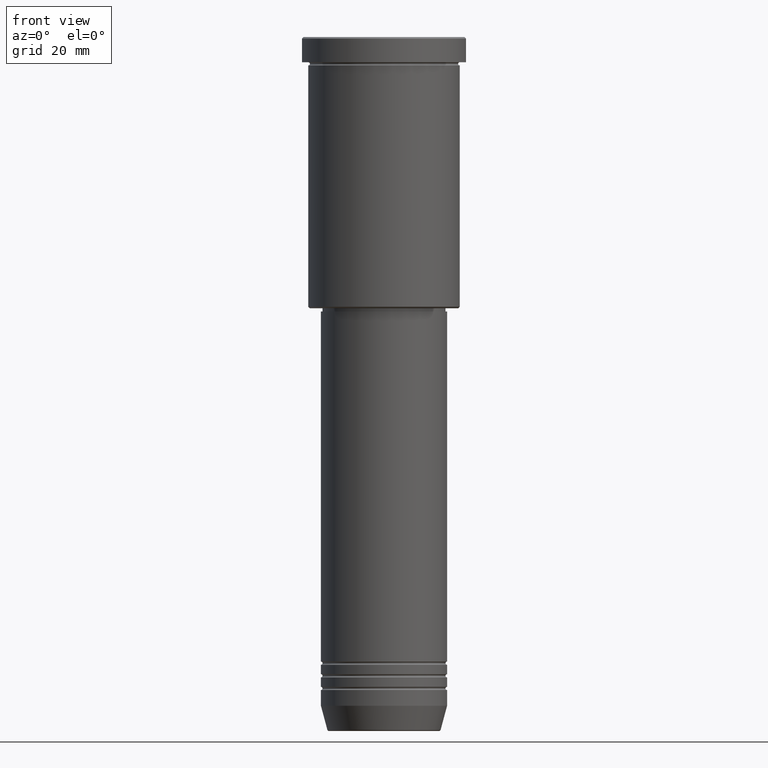
[diagram: clean part render]
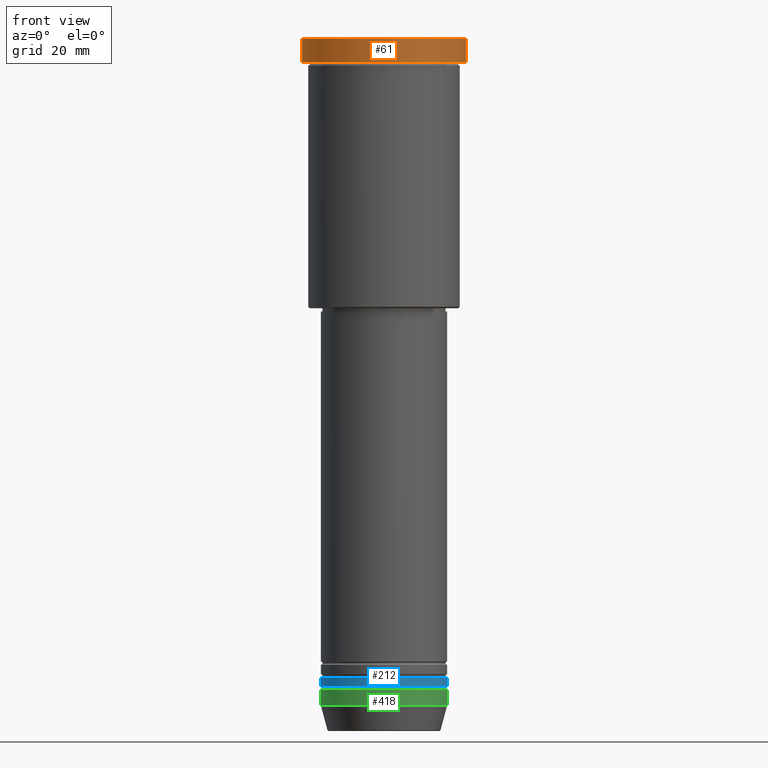
[diagram: same view with three faces highlighted in distinct colors, each labeled with its STEP entity id]
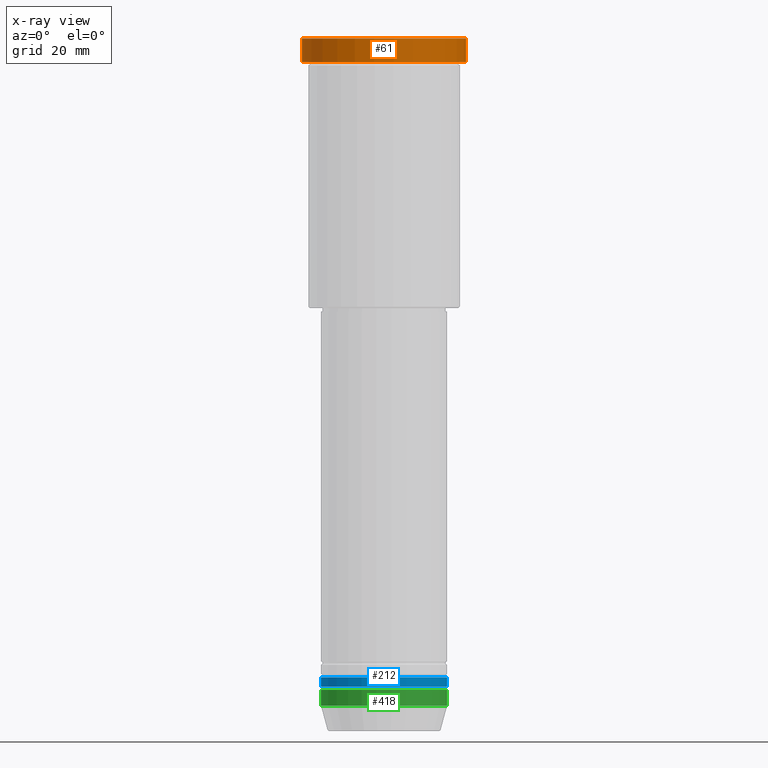
[diagram: x-ray of the same camera — body ghosted, the three highlighted faces saturated]
A machine part, front view with three faces highlighted in distinct colors.
The next image is the same camera in x-ray (body ghosted, the three faces saturated) — at least one of them is partly hidden behind the body in this view.
Their STEP definitions:

[orange] entity #61 — the highlighted cylindrical surface (partial cylindrical patch) has radius 26 mm, axis along (-0, -0, 1).
#61 = ADVANCED_FACE ( 'NONE', ( #330 ), #1178, .T. ) ;
#78 = CARTESIAN_POINT ( 'NONE',  ( 26.00000000000000000, 0.000000000000000000, -0.5000000000000247580 ) ) ;
#126 = EDGE_CURVE ( 'NONE', #1032, #660, #872, .T. ) ;
#160 = ORIENTED_EDGE ( 'NONE', *, *, #126, .T. ) ;
#167 = VECTOR ( 'NONE', #512, 1000.000000000000000 ) ;
#180 = DIRECTION ( 'NONE',  ( -0.000000000000000000, -0.000000000000000000, 1.000000000000000000 ) ) ;
#193 = DIRECTION ( 'NONE',  ( 1.000000000000000000, 0.000000000000000000, 0.000000000000000000 ) ) ;
#196 = AXIS2_PLACEMENT_3D ( 'NONE', #393, #953, #869 ) ;
#204 = VERTEX_POINT ( 'NONE', #614 ) ;
#216 = CARTESIAN_POINT ( 'NONE',  ( -26.00000000000000000, 3.184081677783118191E-15, -7.999999999999992895 ) ) ;
#247 = ORIENTED_EDGE ( 'NONE', *, *, #1174, .T. ) ;
#251 = EDGE_CURVE ( 'NONE', #1032, #204, #870, .T. ) ;
#278 = CARTESIAN_POINT ( 'NONE',  ( 0.000000000000000000, 0.000000000000000000, 0.000000000000000000 ) ) ;
#308 = ORIENTED_EDGE ( 'NONE', *, *, #251, .F. ) ;
#330 = FACE_OUTER_BOUND ( 'NONE', #731, .T. ) ;
#393 = CARTESIAN_POINT ( 'NONE',  ( 0.000000000000000000, 0.000000000000000000, -0.5000000000000247580 ) ) ;
#400 = CIRCLE ( 'NONE', #196, 26.00000000000000000 ) ;
#407 = EDGE_CURVE ( 'NONE', #660, #746, #826, .T. ) ;
#445 = DIRECTION ( 'NONE',  ( -0.000000000000000000, -0.000000000000000000, 1.000000000000000000 ) ) ;
#512 = DIRECTION ( 'NONE',  ( -0.000000000000000000, -0.000000000000000000, 1.000000000000000000 ) ) ;
#573 = CARTESIAN_POINT ( 'NONE',  ( 26.00000000000000000, 0.000000000000000000, -7.999999999999992895 ) ) ;
#608 = CARTESIAN_POINT ( 'NONE',  ( -26.00000000000000000, 3.184081677783118191E-15, 0.000000000000000000 ) ) ;
#614 = CARTESIAN_POINT ( 'NONE',  ( -26.00000000000000000, 3.184081677783118191E-15, -0.5000000000000247580 ) ) ;
#660 = VERTEX_POINT ( 'NONE', #573 ) ;
#688 = AXIS2_PLACEMENT_3D ( 'NONE', #1097, #445, #808 ) ;
#722 = CARTESIAN_POINT ( 'NONE',  ( 26.00000000000000000, 0.000000000000000000, 0.000000000000000000 ) ) ;
#731 = EDGE_LOOP ( 'NONE', ( #308, #160, #1039, #247 ) ) ;
#746 = VERTEX_POINT ( 'NONE', #78 ) ;
#771 = AXIS2_PLACEMENT_3D ( 'NONE', #278, #815, #193 ) ;
#808 = DIRECTION ( 'NONE',  ( 1.000000000000000000, 0.000000000000000000, 0.000000000000000000 ) ) ;
#815 = DIRECTION ( 'NONE',  ( -0.000000000000000000, -0.000000000000000000, 1.000000000000000000 ) ) ;
#826 = LINE ( 'NONE', #722, #993 ) ;
#869 = DIRECTION ( 'NONE',  ( 1.000000000000000000, 0.000000000000000000, 0.000000000000000000 ) ) ;
#870 = LINE ( 'NONE', #608, #167 ) ;
#872 = CIRCLE ( 'NONE', #688, 26.00000000000000000 ) ;
#953 = DIRECTION ( 'NONE',  ( 0.000000000000000000, 0.000000000000000000, -1.000000000000000000 ) ) ;
#993 = VECTOR ( 'NONE', #180, 1000.000000000000000 ) ;
#1032 = VERTEX_POINT ( 'NONE', #216 ) ;
#1039 = ORIENTED_EDGE ( 'NONE', *, *, #407, .T. ) ;
#1097 = CARTESIAN_POINT ( 'NONE',  ( 0.000000000000000000, 0.000000000000000000, -7.999999999999992895 ) ) ;
#1174 = EDGE_CURVE ( 'NONE', #746, #204, #400, .T. ) ;
#1178 = CYLINDRICAL_SURFACE ( 'NONE', #771, 26.00000000000000000 ) ;

[blue] entity #212 — the highlighted cylindrical surface (partial cylindrical patch) has radius 20 mm, axis along (-0, -0, 1).
#140 = ORIENTED_EDGE ( 'NONE', *, *, #914, .T. ) ;
#154 = DIRECTION ( 'NONE',  ( -0.000000000000000000, -0.000000000000000000, 1.000000000000000000 ) ) ;
#183 = CARTESIAN_POINT ( 'NONE',  ( 20.00000000000000000, 0.000000000000000000, -203.0000000000000000 ) ) ;
#200 = EDGE_CURVE ( 'NONE', #1045, #1114, #1128, .T. ) ;
#212 = ADVANCED_FACE ( 'NONE', ( #323 ), #524, .T. ) ;
#222 = ORIENTED_EDGE ( 'NONE', *, *, #939, .F. ) ;
#228 = DIRECTION ( 'NONE',  ( 1.000000000000000000, 0.000000000000000000, 0.000000000000000000 ) ) ;
#242 = EDGE_CURVE ( 'NONE', #641, #284, #328, .T. ) ;
#252 = CARTESIAN_POINT ( 'NONE',  ( 20.00000000000000355, 0.000000000000000000, 0.000000000000000000 ) ) ;
#284 = VERTEX_POINT ( 'NONE', #183 ) ;
#322 = CARTESIAN_POINT ( 'NONE',  ( -20.00000000000000000, 2.449293598294706513E-15, -203.0000000000000000 ) ) ;
#323 = FACE_OUTER_BOUND ( 'NONE', #770, .T. ) ;
#328 = LINE ( 'NONE', #252, #910 ) ;
#353 = DIRECTION ( 'NONE',  ( -0.000000000000000000, -0.000000000000000000, 1.000000000000000000 ) ) ;
#379 = AXIS2_PLACEMENT_3D ( 'NONE', #913, #353, #398 ) ;
#398 = DIRECTION ( 'NONE',  ( 1.000000000000000000, 0.000000000000000000, 0.000000000000000000 ) ) ;
#493 = CARTESIAN_POINT ( 'NONE',  ( -20.00000000000000355, 2.449293598294706907E-15, 0.000000000000000000 ) ) ;
#501 = DIRECTION ( 'NONE',  ( -0.000000000000000000, -0.000000000000000000, 1.000000000000000000 ) ) ;
#524 = CYLINDRICAL_SURFACE ( 'NONE', #972, 20.00000000000000355 ) ;
#598 = ORIENTED_EDGE ( 'NONE', *, *, #242, .T. ) ;
#641 = VERTEX_POINT ( 'NONE', #1036 ) ;
#680 = CIRCLE ( 'NONE', #379, 20.00000000000000000 ) ;
#703 = CARTESIAN_POINT ( 'NONE',  ( -20.00000000000000355, 2.449293598294706907E-15, -205.9999999999999716 ) ) ;
#711 = VECTOR ( 'NONE', #501, 1000.000000000000000 ) ;
#768 = DIRECTION ( 'NONE',  ( -0.000000000000000000, -0.000000000000000000, 1.000000000000000000 ) ) ;
#770 = EDGE_LOOP ( 'NONE', ( #1015, #140, #598, #222 ) ) ;
#796 = CARTESIAN_POINT ( 'NONE',  ( 0.000000000000000000, 0.000000000000000000, 0.000000000000000000 ) ) ;
#828 = DIRECTION ( 'NONE',  ( 1.000000000000000000, 0.000000000000000000, 0.000000000000000000 ) ) ;
#910 = VECTOR ( 'NONE', #768, 1000.000000000000000 ) ;
#913 = CARTESIAN_POINT ( 'NONE',  ( 0.000000000000000000, 0.000000000000000000, -203.0000000000000000 ) ) ;
#914 = EDGE_CURVE ( 'NONE', #1045, #641, #1098, .T. ) ;
#939 = EDGE_CURVE ( 'NONE', #1114, #284, #680, .T. ) ;
#972 = AXIS2_PLACEMENT_3D ( 'NONE', #796, #154, #228 ) ;
#1015 = ORIENTED_EDGE ( 'NONE', *, *, #200, .F. ) ;
#1036 = CARTESIAN_POINT ( 'NONE',  ( 20.00000000000000355, 0.000000000000000000, -205.9999999999999716 ) ) ;
#1038 = AXIS2_PLACEMENT_3D ( 'NONE', #1123, #1040, #828 ) ;
#1040 = DIRECTION ( 'NONE',  ( -0.000000000000000000, -0.000000000000000000, 1.000000000000000000 ) ) ;
#1045 = VERTEX_POINT ( 'NONE', #703 ) ;
#1098 = CIRCLE ( 'NONE', #1038, 20.00000000000000355 ) ;
#1114 = VERTEX_POINT ( 'NONE', #322 ) ;
#1123 = CARTESIAN_POINT ( 'NONE',  ( 0.000000000000000000, 0.000000000000000000, -205.9999999999999716 ) ) ;
#1128 = LINE ( 'NONE', #493, #711 ) ;

[green] entity #418 — the highlighted cylindrical surface (partial cylindrical patch) has radius 20 mm, axis along (-0, -0, 1).
#32 = DIRECTION ( 'NONE',  ( 1.000000000000000000, 0.000000000000000000, 0.000000000000000000 ) ) ;
#49 = VERTEX_POINT ( 'NONE', #1158 ) ;
#82 = EDGE_CURVE ( 'NONE', #338, #49, #98, .T. ) ;
#98 = LINE ( 'NONE', #1095, #310 ) ;
#100 = VERTEX_POINT ( 'NONE', #355 ) ;
#129 = DIRECTION ( 'NONE',  ( 1.000000000000000000, 0.000000000000000000, 0.000000000000000000 ) ) ;
#146 = ORIENTED_EDGE ( 'NONE', *, *, #82, .T. ) ;
#205 = EDGE_CURVE ( 'NONE', #100, #983, #234, .T. ) ;
#234 = LINE ( 'NONE', #978, #1022 ) ;
#271 = CYLINDRICAL_SURFACE ( 'NONE', #955, 20.00000000000000355 ) ;
#294 = CARTESIAN_POINT ( 'NONE',  ( 0.000000000000000000, 0.000000000000000000, -212.0000000000000000 ) ) ;
#310 = VECTOR ( 'NONE', #627, 1000.000000000000000 ) ;
#338 = VERTEX_POINT ( 'NONE', #719 ) ;
#355 = CARTESIAN_POINT ( 'NONE',  ( -20.00000000000000355, 2.449293598294706907E-15, -212.0000000000000000 ) ) ;
#418 = ADVANCED_FACE ( 'NONE', ( #724 ), #271, .T. ) ;
#439 = CIRCLE ( 'NONE', #1111, 20.00000000000000000 ) ;
#449 = DIRECTION ( 'NONE',  ( -0.000000000000000000, -0.000000000000000000, 1.000000000000000000 ) ) ;
#480 = EDGE_LOOP ( 'NONE', ( #609, #1019, #146, #571 ) ) ;
#491 = CIRCLE ( 'NONE', #942, 20.00000000000000355 ) ;
#571 = ORIENTED_EDGE ( 'NONE', *, *, #697, .F. ) ;
#609 = ORIENTED_EDGE ( 'NONE', *, *, #205, .F. ) ;
#627 = DIRECTION ( 'NONE',  ( -0.000000000000000000, -0.000000000000000000, 1.000000000000000000 ) ) ;
#632 = CARTESIAN_POINT ( 'NONE',  ( 0.000000000000000000, 0.000000000000000000, 0.000000000000000000 ) ) ;
#697 = EDGE_CURVE ( 'NONE', #983, #49, #439, .T. ) ;
#719 = CARTESIAN_POINT ( 'NONE',  ( 20.00000000000000355, 0.000000000000000000, -212.0000000000000000 ) ) ;
#724 = FACE_OUTER_BOUND ( 'NONE', #480, .T. ) ;
#805 = CARTESIAN_POINT ( 'NONE',  ( 0.000000000000000000, 0.000000000000000000, -207.0000000000000000 ) ) ;
#842 = EDGE_CURVE ( 'NONE', #100, #338, #491, .T. ) ;
#844 = DIRECTION ( 'NONE',  ( -0.000000000000000000, -0.000000000000000000, 1.000000000000000000 ) ) ;
#942 = AXIS2_PLACEMENT_3D ( 'NONE', #294, #844, #129 ) ;
#955 = AXIS2_PLACEMENT_3D ( 'NONE', #632, #988, #32 ) ;
#971 = DIRECTION ( 'NONE',  ( -0.000000000000000000, -0.000000000000000000, 1.000000000000000000 ) ) ;
#978 = CARTESIAN_POINT ( 'NONE',  ( -20.00000000000000355, 2.449293598294706907E-15, 0.000000000000000000 ) ) ;
#983 = VERTEX_POINT ( 'NONE', #1079 ) ;
#986 = DIRECTION ( 'NONE',  ( 1.000000000000000000, 0.000000000000000000, 0.000000000000000000 ) ) ;
#988 = DIRECTION ( 'NONE',  ( -0.000000000000000000, -0.000000000000000000, 1.000000000000000000 ) ) ;
#1019 = ORIENTED_EDGE ( 'NONE', *, *, #842, .T. ) ;
#1022 = VECTOR ( 'NONE', #971, 1000.000000000000000 ) ;
#1079 = CARTESIAN_POINT ( 'NONE',  ( -20.00000000000000000, 2.449293598294706513E-15, -207.0000000000000000 ) ) ;
#1095 = CARTESIAN_POINT ( 'NONE',  ( 20.00000000000000355, 0.000000000000000000, 0.000000000000000000 ) ) ;
#1111 = AXIS2_PLACEMENT_3D ( 'NONE', #805, #449, #986 ) ;
#1158 = CARTESIAN_POINT ( 'NONE',  ( 20.00000000000000000, 0.000000000000000000, -207.0000000000000000 ) ) ;